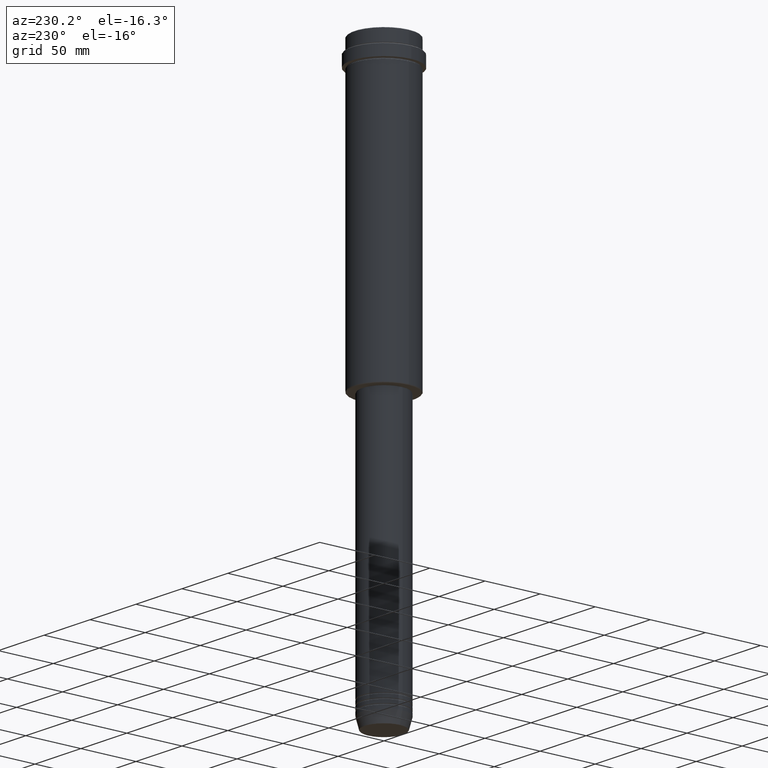
[diagram: clean part render]
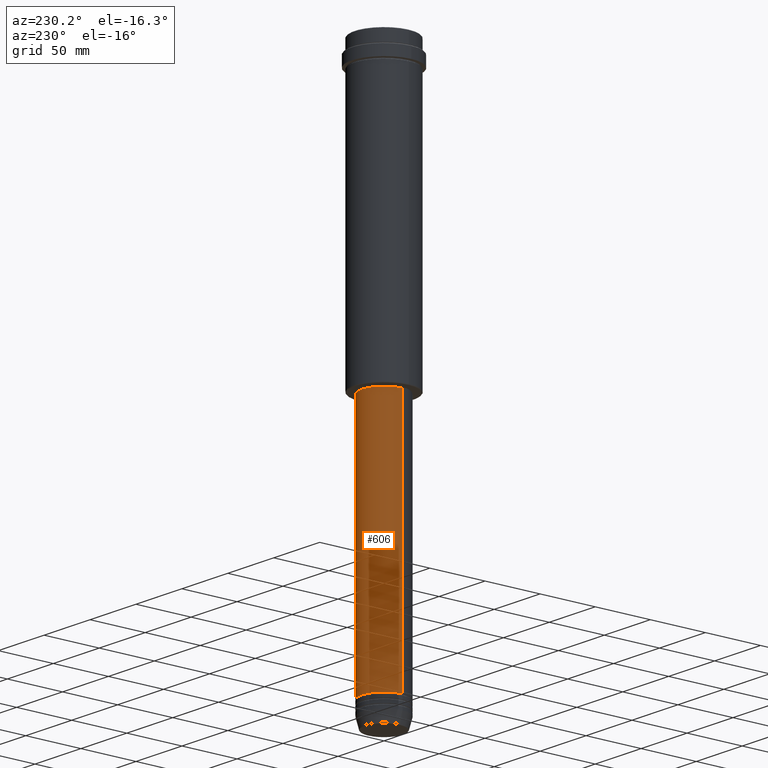
[diagram: same view with one face highlighted and labeled with its STEP entity id]
A machine part, auxiliary view. The second image highlights one B-rep face of the part: STEP entity #606.
In plain terms, the highlighted cylindrical surface (edge-blend (fillet) strip) has radius 20 mm, axis along (-0, -0, 1).
Its self-contained STEP definition (entity closure, byte-faithful):
#2 = VECTOR ( 'NONE', #140, 1000.000000000000000 ) ;
#140 = DIRECTION ( 'NONE',  ( -0.000000000000000000, -0.000000000000000000, 1.000000000000000000 ) ) ;
#141 = EDGE_CURVE ( 'NONE', #758, #488, #968, .T. ) ;
#156 = CARTESIAN_POINT ( 'NONE',  ( 20.00000000000000000, 0.000000000000000000, 0.000000000000000000 ) ) ;
#180 = DIRECTION ( 'NONE',  ( 1.000000000000000000, 0.000000000000000000, 0.000000000000000000 ) ) ;
#182 = ORIENTED_EDGE ( 'NONE', *, *, #141, .F. ) ;
#185 = CARTESIAN_POINT ( 'NONE',  ( 0.000000000000000000, 0.000000000000000000, -480.9999999999998863 ) ) ;
#218 = ORIENTED_EDGE ( 'NONE', *, *, #959, .T. ) ;
#283 = CYLINDRICAL_SURFACE ( 'NONE', #838, 20.00000000000000000 ) ;
#358 = CARTESIAN_POINT ( 'NONE',  ( -20.00000000000000000, 2.449293598294706513E-15, -259.0000000000000000 ) ) ;
#360 = LINE ( 'NONE', #156, #509 ) ;
#374 = EDGE_LOOP ( 'NONE', ( #218, #1191, #182, #407 ) ) ;
#384 = CARTESIAN_POINT ( 'NONE',  ( -20.00000000000000000, 2.449293598294706513E-15, -480.9999999999998863 ) ) ;
#388 = EDGE_CURVE ( 'NONE', #706, #488, #1002, .T. ) ;
#407 = ORIENTED_EDGE ( 'NONE', *, *, #844, .F. ) ;
#483 = CARTESIAN_POINT ( 'NONE',  ( 0.000000000000000000, 0.000000000000000000, -259.0000000000000000 ) ) ;
#488 = VERTEX_POINT ( 'NONE', #358 ) ;
#505 = DIRECTION ( 'NONE',  ( 1.000000000000000000, 0.000000000000000000, 0.000000000000000000 ) ) ;
#509 = VECTOR ( 'NONE', #1314, 1000.000000000000000 ) ;
#597 = DIRECTION ( 'NONE',  ( -0.000000000000000000, -0.000000000000000000, 1.000000000000000000 ) ) ;
#606 = ADVANCED_FACE ( 'NONE', ( #1245 ), #283, .T. ) ;
#624 = VERTEX_POINT ( 'NONE', #1360 ) ;
#706 = VERTEX_POINT ( 'NONE', #384 ) ;
#758 = VERTEX_POINT ( 'NONE', #1174 ) ;
#818 = CIRCLE ( 'NONE', #975, 20.00000000000000000 ) ;
#819 = DIRECTION ( 'NONE',  ( 1.000000000000000000, 0.000000000000000000, 0.000000000000000000 ) ) ;
#838 = AXIS2_PLACEMENT_3D ( 'NONE', #1239, #597, #180 ) ;
#844 = EDGE_CURVE ( 'NONE', #624, #758, #360, .T. ) ;
#854 = AXIS2_PLACEMENT_3D ( 'NONE', #483, #1371, #505 ) ;
#898 = CARTESIAN_POINT ( 'NONE',  ( -20.00000000000000000, 2.449293598294706513E-15, 0.000000000000000000 ) ) ;
#925 = DIRECTION ( 'NONE',  ( -0.000000000000000000, -0.000000000000000000, 1.000000000000000000 ) ) ;
#959 = EDGE_CURVE ( 'NONE', #624, #706, #818, .T. ) ;
#968 = CIRCLE ( 'NONE', #854, 20.00000000000000000 ) ;
#975 = AXIS2_PLACEMENT_3D ( 'NONE', #185, #925, #819 ) ;
#1002 = LINE ( 'NONE', #898, #2 ) ;
#1174 = CARTESIAN_POINT ( 'NONE',  ( 20.00000000000000000, 0.000000000000000000, -259.0000000000000000 ) ) ;
#1191 = ORIENTED_EDGE ( 'NONE', *, *, #388, .T. ) ;
#1239 = CARTESIAN_POINT ( 'NONE',  ( 0.000000000000000000, 0.000000000000000000, 0.000000000000000000 ) ) ;
#1245 = FACE_OUTER_BOUND ( 'NONE', #374, .T. ) ;
#1314 = DIRECTION ( 'NONE',  ( -0.000000000000000000, -0.000000000000000000, 1.000000000000000000 ) ) ;
#1360 = CARTESIAN_POINT ( 'NONE',  ( 20.00000000000000000, 0.000000000000000000, -480.9999999999998863 ) ) ;
#1371 = DIRECTION ( 'NONE',  ( -0.000000000000000000, -0.000000000000000000, 1.000000000000000000 ) ) ;